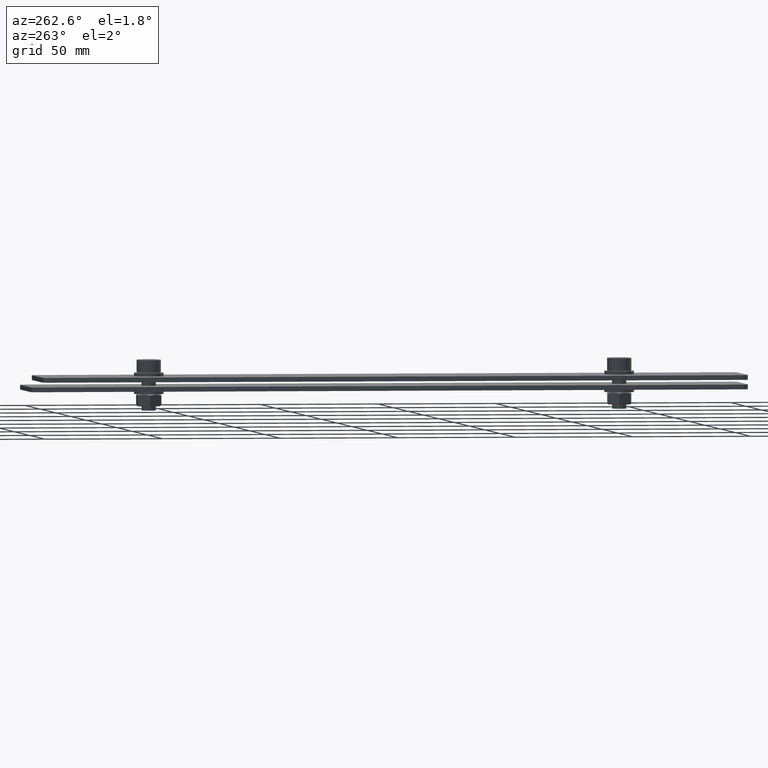
[diagram: clean part render]
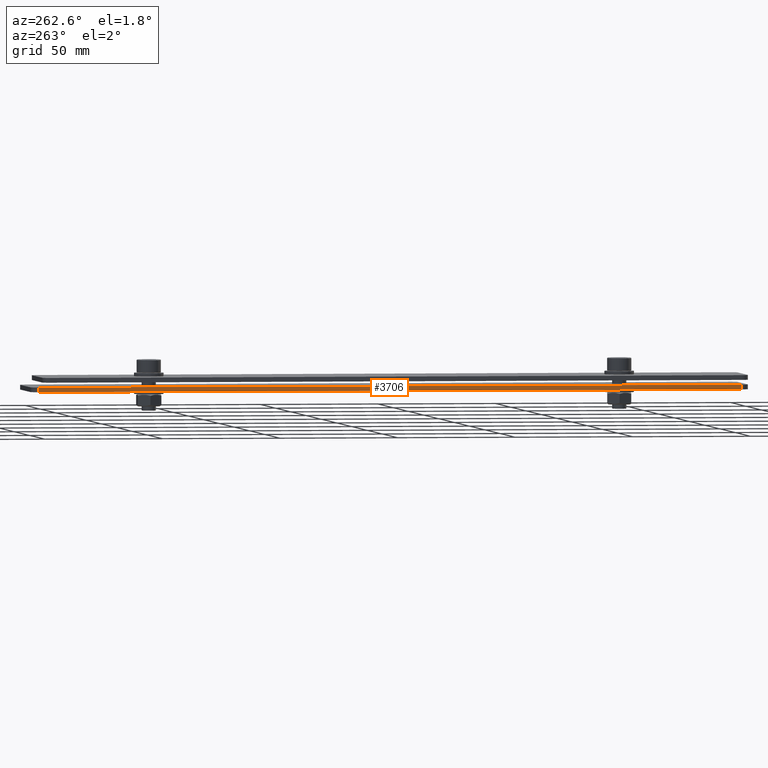
[diagram: same view with one face highlighted and labeled with its STEP entity id]
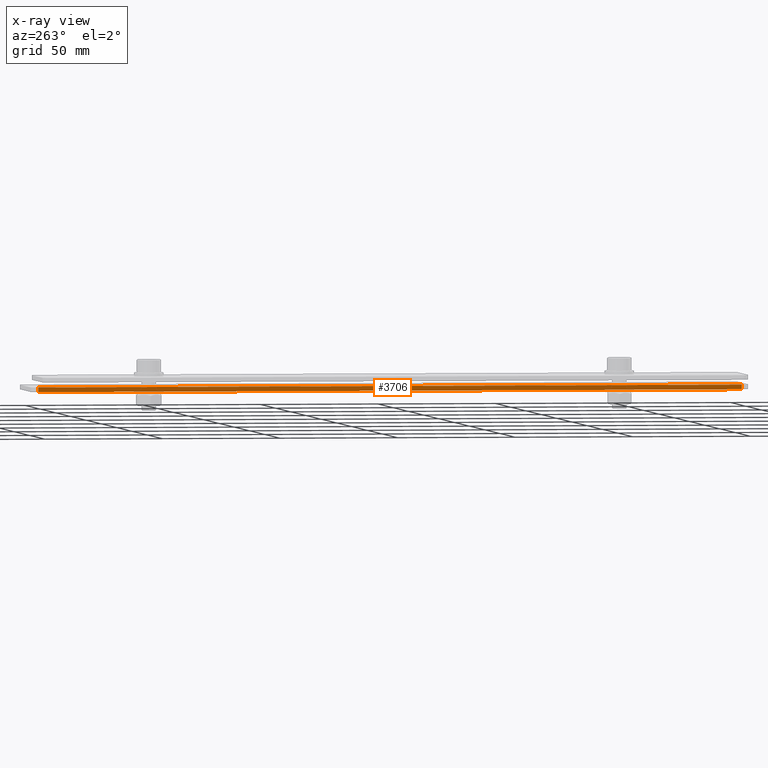
[diagram: x-ray of the same camera — body ghosted, the highlighted face saturated]
A machine part, auxiliary view. The second image highlights one B-rep face of the part: STEP entity #3706.
The next image is the same camera in x-ray: the body ghosted, the highlighted face saturated — about 0% of this face is hidden behind the body in this view.
In plain terms, the highlighted planar face has unit normal (-1, 0, 0).
Its self-contained STEP definition (entity closure, byte-faithful):
#105 = PLANE ( 'NONE',  #3152 ) ;
#124 = LINE ( 'NONE', #3640, #3537 ) ;
#163 = EDGE_CURVE ( 'NONE', #1395, #283, #2407, .T. ) ;
#283 = VERTEX_POINT ( 'NONE', #3349 ) ;
#311 = EDGE_CURVE ( 'NONE', #2459, #2587, #1781, .T. ) ;
#634 = VECTOR ( 'NONE', #1829, 1000.000000000000000 ) ;
#686 = FACE_OUTER_BOUND ( 'NONE', #1382, .T. ) ;
#912 = ORIENTED_EDGE ( 'NONE', *, *, #1265, .F. ) ;
#939 = CARTESIAN_POINT ( 'NONE',  ( -40.00000000000007816, 175.5000000000000000, -1.999999999999998224 ) ) ;
#991 = ORIENTED_EDGE ( 'NONE', *, *, #1281, .T. ) ;
#1265 = EDGE_CURVE ( 'NONE', #2587, #1395, #124, .T. ) ;
#1281 = EDGE_CURVE ( 'NONE', #2459, #283, #3073, .T. ) ;
#1284 = DIRECTION ( 'NONE',  ( -1.000000000000000000, 0.000000000000000000, 5.551115123125782702E-17 ) ) ;
#1370 = VECTOR ( 'NONE', #2953, 1000.000000000000000 ) ;
#1382 = EDGE_LOOP ( 'NONE', ( #912, #1714, #991, #1693 ) ) ;
#1395 = VERTEX_POINT ( 'NONE', #2556 ) ;
#1693 = ORIENTED_EDGE ( 'NONE', *, *, #163, .F. ) ;
#1714 = ORIENTED_EDGE ( 'NONE', *, *, #311, .F. ) ;
#1781 = LINE ( 'NONE', #3223, #1370 ) ;
#1829 = DIRECTION ( 'NONE',  ( 5.551115123125782702E-17, 0.000000000000000000, 1.000000000000000000 ) ) ;
#1938 = CARTESIAN_POINT ( 'NONE',  ( -40.00000000000007105, -123.5000000000000000, 1.734723475976807094E-15 ) ) ;
#2172 = DIRECTION ( 'NONE',  ( -5.551115123125782702E-17, 0.000000000000000000, -1.000000000000000000 ) ) ;
#2407 = LINE ( 'NONE', #939, #634 ) ;
#2459 = VERTEX_POINT ( 'NONE', #1938 ) ;
#2502 = DIRECTION ( 'NONE',  ( -0.000000000000000000, 1.000000000000000000, -0.000000000000000000 ) ) ;
#2519 = DIRECTION ( 'NONE',  ( -0.000000000000000000, 1.000000000000000000, -0.000000000000000000 ) ) ;
#2556 = CARTESIAN_POINT ( 'NONE',  ( -40.00000000000007105, 175.5000000000000000, -1.999999999999998224 ) ) ;
#2587 = VERTEX_POINT ( 'NONE', #2913 ) ;
#2743 = CARTESIAN_POINT ( 'NONE',  ( -40.00000000000007105, 178.4000000000000057, -1.999999999999998224 ) ) ;
#2821 = CARTESIAN_POINT ( 'NONE',  ( -40.00000000000007105, 178.4000000000000057, 1.734723475976807094E-15 ) ) ;
#2913 = CARTESIAN_POINT ( 'NONE',  ( -40.00000000000007105, -123.5000000000000000, -1.999999999999998224 ) ) ;
#2953 = DIRECTION ( 'NONE',  ( -5.551115123125782702E-17, -0.000000000000000000, -1.000000000000000000 ) ) ;
#3073 = LINE ( 'NONE', #2821, #3161 ) ;
#3152 = AXIS2_PLACEMENT_3D ( 'NONE', #2743, #1284, #2172 ) ;
#3161 = VECTOR ( 'NONE', #2502, 1000.000000000000000 ) ;
#3223 = CARTESIAN_POINT ( 'NONE',  ( -40.00000000000007816, -123.5000000000000000, -1.999999999999998224 ) ) ;
#3349 = CARTESIAN_POINT ( 'NONE',  ( -40.00000000000007105, 175.5000000000000000, 1.734723475976807094E-15 ) ) ;
#3537 = VECTOR ( 'NONE', #2519, 1000.000000000000000 ) ;
#3640 = CARTESIAN_POINT ( 'NONE',  ( -40.00000000000007105, 178.4000000000000057, -1.999999999999998224 ) ) ;
#3706 = ADVANCED_FACE ( 'NONE', ( #686 ), #105, .T. ) ;